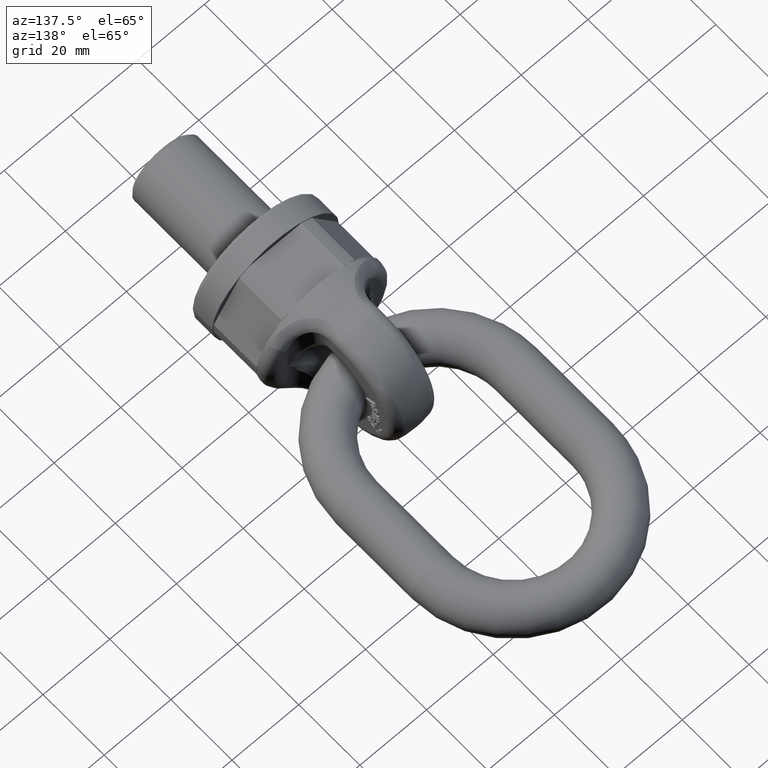
[diagram: clean part render]
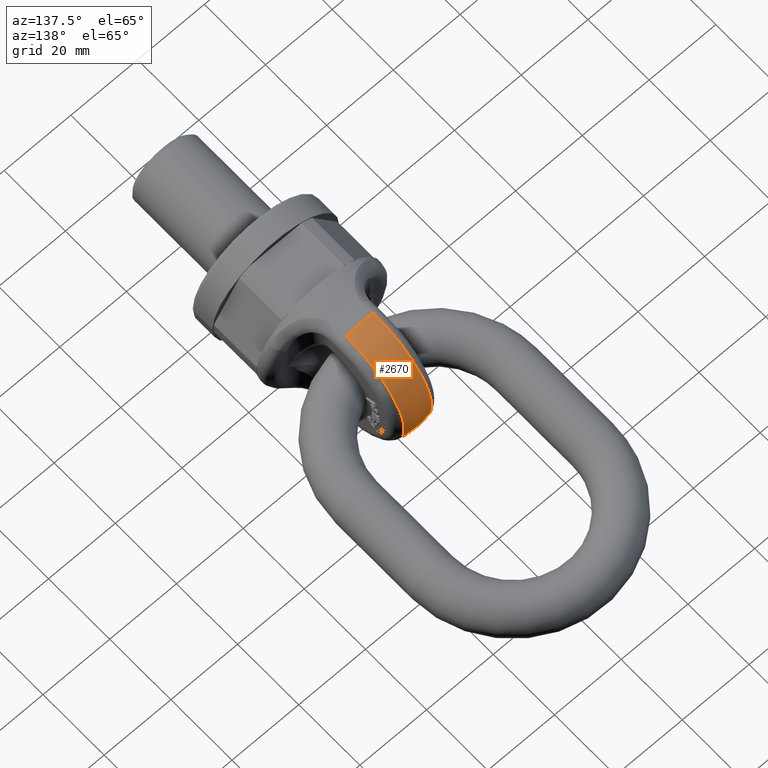
[diagram: same view with one face highlighted and labeled with its STEP entity id]
A machine part, auxiliary view. The second image highlights one B-rep face of the part: STEP entity #2670.
In plain terms, the highlighted spherical surface has radius 19 mm.
Its self-contained STEP definition (entity closure, byte-faithful):
#315=SPHERICAL_SURFACE('',#5660,19.);
#1822=FACE_OUTER_BOUND('',#3106,.T.);
#2670=ADVANCED_FACE('',(#1822),#315,.T.);
#3106=EDGE_LOOP('',(#3534,#3535,#3536,#3537));
#3534=ORIENTED_EDGE('',*,*,#5068,.F.);
#3535=ORIENTED_EDGE('',*,*,#5079,.T.);
#3536=ORIENTED_EDGE('',*,*,#5074,.F.);
#3537=ORIENTED_EDGE('',*,*,#5080,.T.);
#4655=VERTEX_POINT('',#7027);
#4656=VERTEX_POINT('',#7029);
#4661=VERTEX_POINT('',#7063);
#4662=VERTEX_POINT('',#7065);
#5068=EDGE_CURVE('',#4655,#4656,#5562,.T.);
#5074=EDGE_CURVE('',#4661,#4662,#5564,.T.);
#5079=EDGE_CURVE('',#4655,#4662,#5566,.T.);
#5080=EDGE_CURVE('',#4661,#4656,#5567,.T.);
#5562=CIRCLE('',#5653,18.9937982914999);
#5564=CIRCLE('',#5655,18.9937982914999);
#5566=CIRCLE('',#5658,18.5398378077452);
#5567=CIRCLE('',#5659,18.5398378077452);
#5653=AXIS2_PLACEMENT_3D('',#7028,#5969,#5970);
#5655=AXIS2_PLACEMENT_3D('',#7064,#5973,#5974);
#5658=AXIS2_PLACEMENT_3D('',#7095,#5979,#5980);
#5659=AXIS2_PLACEMENT_3D('',#7096,#5981,#5982);
#5660=AXIS2_PLACEMENT_3D('',#7097,#5983,#5984);
#5969=DIRECTION('',(0.,-1.,0.));
#5970=DIRECTION('',(0.,0.,-1.));
#5973=DIRECTION('',(0.,-1.,0.));
#5974=DIRECTION('',(0.,0.,-1.));
#5979=DIRECTION('',(1.,3.58908305374512E-16,2.34291072916505E-15));
#5980=DIRECTION('',(3.74269396305529E-16,-1.,8.31045002381911E-31));
#5981=DIRECTION('',(-1.,3.58908305374512E-16,0.));
#5982=DIRECTION('',(-3.74269396305529E-16,-1.,0.));
#5983=DIRECTION('',(6.12323399573677E-17,-1.,0.));
#5984=DIRECTION('',(1.,0.,0.));
#7027=CARTESIAN_POINT('',(-4.15624999999995,34.514586298282,-18.5334821195501));
#7028=CARTESIAN_POINT('',(0.,34.514586298282,0.));
#7029=CARTESIAN_POINT('',(4.15625,34.514586298282,-18.5334821195501));
#7063=CARTESIAN_POINT('',(4.15625,34.514586298282,18.5334821195501));
#7064=CARTESIAN_POINT('',(0.,34.514586298282,0.));
#7065=CARTESIAN_POINT('',(-4.15625000000004,34.514586298282,18.5334821195501));
#7095=CARTESIAN_POINT('',(-4.15625,35.,-9.73772271809223E-15));
#7096=CARTESIAN_POINT('',(4.15625,35.,0.));
#7097=CARTESIAN_POINT('',(0.,35.,0.));